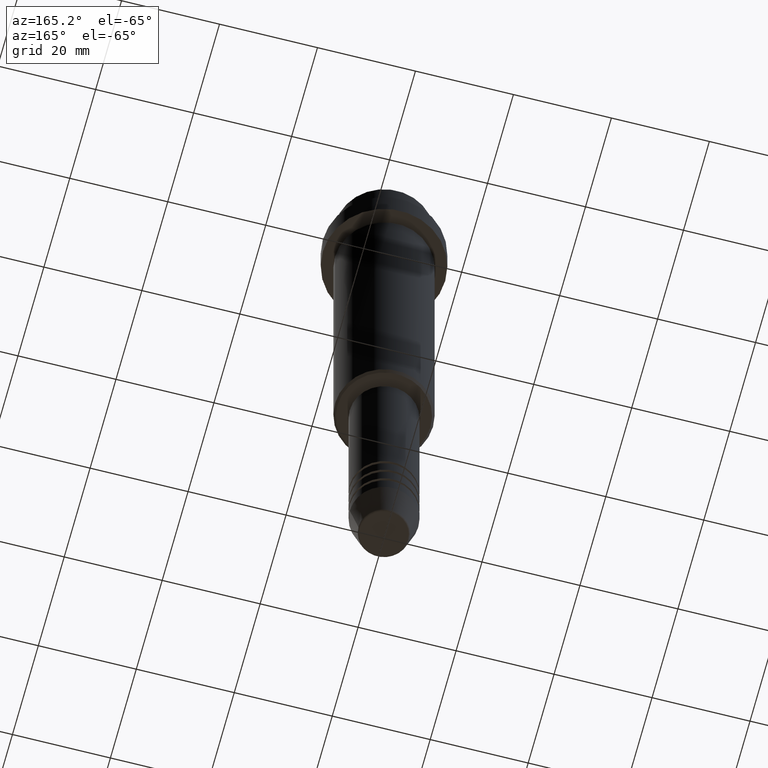
[diagram: clean part render]
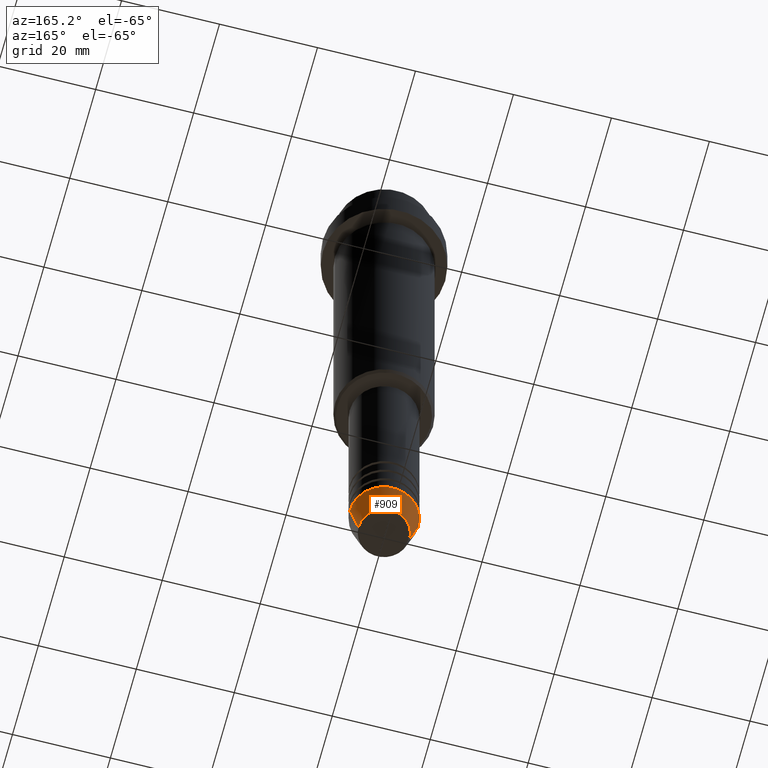
[diagram: same view with one face highlighted and labeled with its STEP entity id]
A machine part, auxiliary view. The second image highlights one B-rep face of the part: STEP entity #909.
In plain terms, the highlighted conical surface has half-angle 15 deg.
Its self-contained STEP definition (entity closure, byte-faithful):
#16 = AXIS2_PLACEMENT_3D ( 'NONE', #893, #335, #453 ) ;
#46 = CARTESIAN_POINT ( 'NONE',  ( -7.000000000000000000, 8.572527594031473190E-16, -133.0000000000000000 ) ) ;
#117 = EDGE_CURVE ( 'NONE', #839, #1199, #899, .T. ) ;
#176 = ORIENTED_EDGE ( 'NONE', *, *, #1341, .F. ) ;
#189 = EDGE_CURVE ( 'NONE', #1199, #709, #1131, .T. ) ;
#238 = DIRECTION ( 'NONE',  ( -0.000000000000000000, -0.000000000000000000, 1.000000000000000000 ) ) ;
#249 = CARTESIAN_POINT ( 'NONE',  ( 0.000000000000000000, 0.000000000000000000, -139.6294095225512706 ) ) ;
#306 = LINE ( 'NONE', #381, #948 ) ;
#335 = DIRECTION ( 'NONE',  ( -0.000000000000000000, -0.000000000000000000, 1.000000000000000000 ) ) ;
#381 = CARTESIAN_POINT ( 'NONE',  ( 7.000000000000000000, 0.000000000000000000, -133.0000000000000000 ) ) ;
#433 = EDGE_LOOP ( 'NONE', ( #657, #1055, #176, #524 ) ) ;
#440 = CARTESIAN_POINT ( 'NONE',  ( 0.000000000000000000, 0.000000000000000000, -133.0000000000000000 ) ) ;
#450 = CIRCLE ( 'NONE', #1024, 7.000000000000000000 ) ;
#453 = DIRECTION ( 'NONE',  ( 1.000000000000000000, 0.000000000000000000, 0.000000000000000000 ) ) ;
#524 = ORIENTED_EDGE ( 'NONE', *, *, #679, .F. ) ;
#584 = CARTESIAN_POINT ( 'NONE',  ( 5.223655072137191269, 0.000000000000000000, -139.6294095225512706 ) ) ;
#625 = CONICAL_SURFACE ( 'NONE', #16, 7.000000000000000000, 0.2617993877991501295 ) ;
#657 = ORIENTED_EDGE ( 'NONE', *, *, #117, .T. ) ;
#679 = EDGE_CURVE ( 'NONE', #839, #1261, #306, .T. ) ;
#709 = VERTEX_POINT ( 'NONE', #1316 ) ;
#737 = CARTESIAN_POINT ( 'NONE',  ( -5.223655072137191269, 7.484830028987061160E-16, -139.6294095225512706 ) ) ;
#769 = DIRECTION ( 'NONE',  ( -0.000000000000000000, -0.000000000000000000, 1.000000000000000000 ) ) ;
#811 = DIRECTION ( 'NONE',  ( 0.2588190451025214056, 0.000000000000000000, 0.9659258262890680902 ) ) ;
#839 = VERTEX_POINT ( 'NONE', #584 ) ;
#842 = CARTESIAN_POINT ( 'NONE',  ( 7.000000000000000000, 0.000000000000000000, -133.0000000000000000 ) ) ;
#891 = DIRECTION ( 'NONE',  ( 1.000000000000000000, 0.000000000000000000, 0.000000000000000000 ) ) ;
#893 = CARTESIAN_POINT ( 'NONE',  ( 0.000000000000000000, 0.000000000000000000, -133.0000000000000000 ) ) ;
#899 = CIRCLE ( 'NONE', #1360, 5.223655072137191269 ) ;
#909 = ADVANCED_FACE ( 'NONE', ( #1212 ), #625, .T. ) ;
#948 = VECTOR ( 'NONE', #811, 1000.000000000000000 ) ;
#1024 = AXIS2_PLACEMENT_3D ( 'NONE', #440, #769, #891 ) ;
#1055 = ORIENTED_EDGE ( 'NONE', *, *, #189, .T. ) ;
#1131 = LINE ( 'NONE', #46, #1301 ) ;
#1199 = VERTEX_POINT ( 'NONE', #737 ) ;
#1212 = FACE_OUTER_BOUND ( 'NONE', #433, .T. ) ;
#1238 = DIRECTION ( 'NONE',  ( -0.2588190451025214056, 3.169619151431772953E-17, 0.9659258262890680902 ) ) ;
#1261 = VERTEX_POINT ( 'NONE', #842 ) ;
#1301 = VECTOR ( 'NONE', #1238, 1000.000000000000000 ) ;
#1316 = CARTESIAN_POINT ( 'NONE',  ( -7.000000000000000000, 8.572527594031473190E-16, -133.0000000000000000 ) ) ;
#1341 = EDGE_CURVE ( 'NONE', #1261, #709, #450, .T. ) ;
#1349 = DIRECTION ( 'NONE',  ( 1.000000000000000000, 0.000000000000000000, 0.000000000000000000 ) ) ;
#1360 = AXIS2_PLACEMENT_3D ( 'NONE', #249, #238, #1349 ) ;